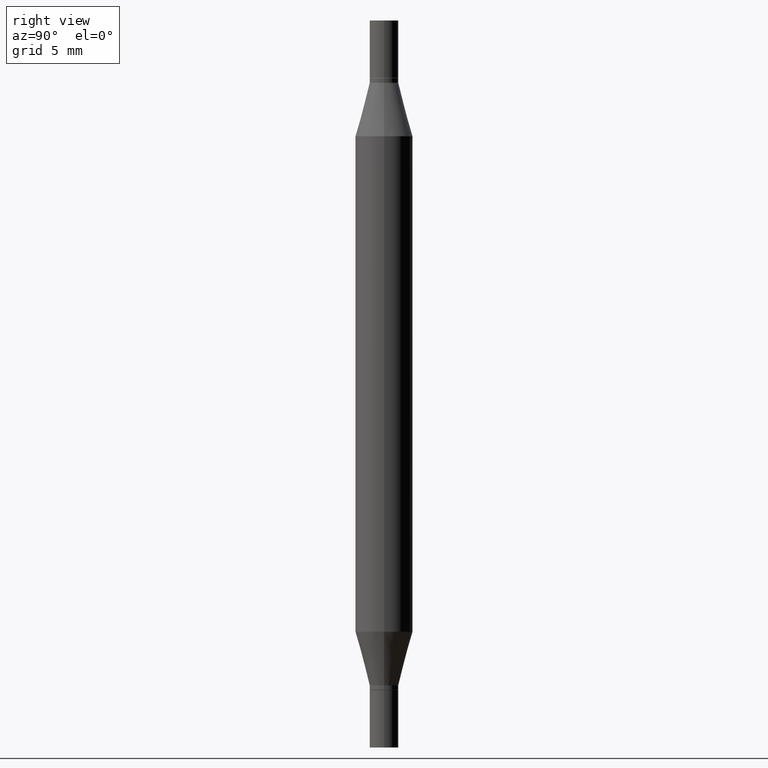
[diagram: clean part render]
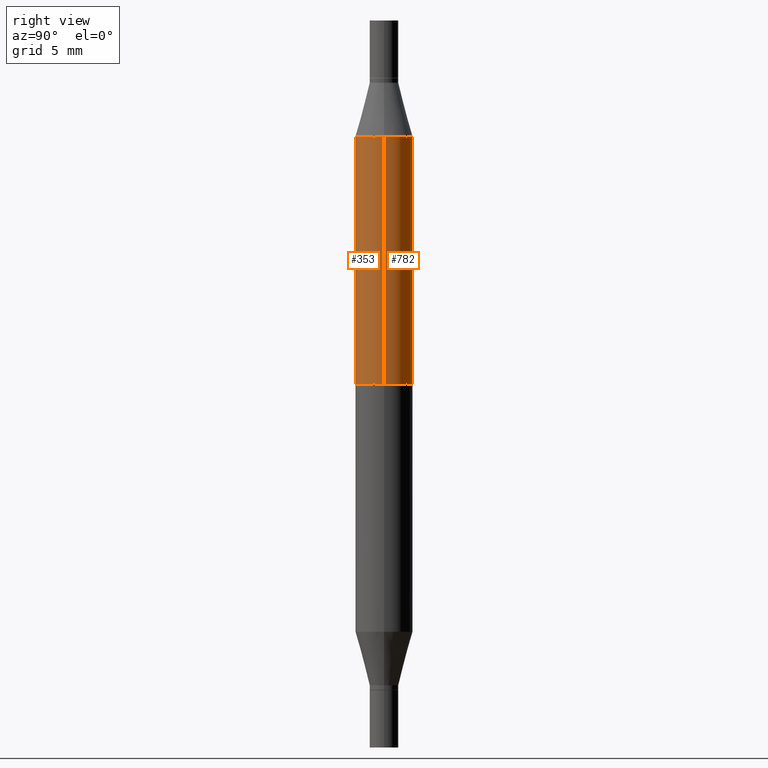
[diagram: same view with one multi-face feature highlighted, each face labeled with its STEP entity id]
A machine part, right view. The highlighted faces form ONE feature: a constant-radius fillet chain: 2 tangent blend faces with common blend radius 1.4999 mm. The faces share edges in the B-rep.
Their STEP definitions:
[1] entity #353 (Cylinder):
#13 = LINE ( 'NONE', #671, #833 ) ;
#19 = VERTEX_POINT ( 'NONE', #445 ) ;
#31 = CYLINDRICAL_SURFACE ( 'NONE', #296, 0.05905000000000000526 ) ;
#39 = DIRECTION ( 'NONE',  ( 1.000000000000000000, -6.982962677686265133E-15, 0.000000000000000000 ) ) ;
#82 = EDGE_CURVE ( 'NONE', #19, #412, #602, .T. ) ;
#106 = DIRECTION ( 'NONE',  ( 2.445468806185136597E-29, 3.491805094961124077E-15, 1.000000000000000000 ) ) ;
#149 = DIRECTION ( 'NONE',  ( 0.000000000000000000, 1.000000000000000000, -4.626330217890369336E-15 ) ) ;
#210 = CARTESIAN_POINT ( 'NONE',  ( 1.829332940466791194E-29, -2.611802615521614830E-15, -0.7480499999999999927 ) ) ;
#215 = DIRECTION ( 'NONE',  ( -0.000000000000000000, -3.491643216902134830E-15, -1.000000000000000000 ) ) ;
#254 = DIRECTION ( 'NONE',  ( -2.445468806185136877E-29, -3.491805094961123683E-15, -1.000000000000000000 ) ) ;
#258 = DIRECTION ( 'NONE',  ( -2.445468806185136597E-29, -3.491805094961124077E-15, -1.000000000000000000 ) ) ;
#296 = AXIS2_PLACEMENT_3D ( 'NONE', #332, #258, #854 ) ;
#332 = CARTESIAN_POINT ( 'NONE',  ( 0.000000000000000000, -5.223847416807283040E-15, -1.496099999999999985 ) ) ;
#352 = EDGE_CURVE ( 'NONE', #558, #412, #617, .T. ) ;
#353 = ADVANCED_FACE ( 'NONE', ( #701 ), #31, .T. ) ;
#386 = CARTESIAN_POINT ( 'NONE',  ( 0.05904999999999999832, -1.243484836231766624E-15, -0.2380954988232820146 ) ) ;
#401 = CARTESIAN_POINT ( 'NONE',  ( -0.05905000000000000526, -4.818735010038875060E-15, -1.496099999999999985 ) ) ;
#402 = CARTESIAN_POINT ( 'NONE',  ( 3.076410765668156654E-29, -8.311408901143919011E-16, -0.2380954988232820146 ) ) ;
#412 = VERTEX_POINT ( 'NONE', #936 ) ;
#445 = CARTESIAN_POINT ( 'NONE',  ( 0.05905000000000000526, -2.133815698935376609E-15, -0.7480499999999999927 ) ) ;
#511 = VERTEX_POINT ( 'NONE', #386 ) ;
#526 = EDGE_LOOP ( 'NONE', ( #548, #896, #862, #716 ) ) ;
#548 = ORIENTED_EDGE ( 'NONE', *, *, #847, .F. ) ;
#558 = VERTEX_POINT ( 'NONE', #897 ) ;
#561 = VECTOR ( 'NONE', #254, 39.37007874015748143 ) ;
#596 = DIRECTION ( 'NONE',  ( -2.445468806185136877E-29, -3.491805094961123683E-15, -1.000000000000000000 ) ) ;
#602 = CIRCLE ( 'NONE', #908, 0.05905000000000000526 ) ;
#617 = LINE ( 'NONE', #401, #561 ) ;
#624 = EDGE_CURVE ( 'NONE', #511, #19, #13, .T. ) ;
#671 = CARTESIAN_POINT ( 'NONE',  ( 0.05905000000000000526, -5.636191362924657961E-15, -1.496099999999999985 ) ) ;
#701 = FACE_OUTER_BOUND ( 'NONE', #526, .T. ) ;
#716 = ORIENTED_EDGE ( 'NONE', *, *, #624, .F. ) ;
#800 = AXIS2_PLACEMENT_3D ( 'NONE', #402, #106, #39 ) ;
#833 = VECTOR ( 'NONE', #596, 39.37007874015748143 ) ;
#847 = EDGE_CURVE ( 'NONE', #558, #511, #878, .T. ) ;
#854 = DIRECTION ( 'NONE',  ( 1.000000000000000000, -6.982962677686272233E-15, 0.000000000000000000 ) ) ;
#862 = ORIENTED_EDGE ( 'NONE', *, *, #82, .F. ) ;
#878 = CIRCLE ( 'NONE', #800, 0.05904999999999999832 ) ;
#896 = ORIENTED_EDGE ( 'NONE', *, *, #352, .T. ) ;
#897 = CARTESIAN_POINT ( 'NONE',  ( -0.05904999999999999832, -4.260284833459836245E-16, -0.2380954988232820146 ) ) ;
#908 = AXIS2_PLACEMENT_3D ( 'NONE', #210, #215, #149 ) ;
#936 = CARTESIAN_POINT ( 'NONE',  ( -0.05905000000000000526, -1.316359346049593906E-15, -0.7480499999999999927 ) ) ;
[2] entity #782 (Cylinder):
#3 = DIRECTION ( 'NONE',  ( -2.445468806185136597E-29, -3.491805094961124077E-15, -1.000000000000000000 ) ) ;
#8 = ORIENTED_EDGE ( 'NONE', *, *, #352, .F. ) ;
#13 = LINE ( 'NONE', #671, #833 ) ;
#19 = VERTEX_POINT ( 'NONE', #445 ) ;
#73 = ORIENTED_EDGE ( 'NONE', *, *, #624, .T. ) ;
#93 = CYLINDRICAL_SURFACE ( 'NONE', #135, 0.05905000000000000526 ) ;
#117 = EDGE_CURVE ( 'NONE', #412, #19, #193, .T. ) ;
#135 = AXIS2_PLACEMENT_3D ( 'NONE', #739, #3, #594 ) ;
#143 = DIRECTION ( 'NONE',  ( -0.000000000000000000, -3.491643216902134830E-15, -1.000000000000000000 ) ) ;
#160 = AXIS2_PLACEMENT_3D ( 'NONE', #316, #678, #914 ) ;
#193 = CIRCLE ( 'NONE', #798, 0.05905000000000000526 ) ;
#209 = EDGE_CURVE ( 'NONE', #511, #558, #704, .T. ) ;
#254 = DIRECTION ( 'NONE',  ( -2.445468806185136877E-29, -3.491805094961123683E-15, -1.000000000000000000 ) ) ;
#316 = CARTESIAN_POINT ( 'NONE',  ( 3.076410765668156654E-29, -8.311408901143919011E-16, -0.2380954988232820146 ) ) ;
#352 = EDGE_CURVE ( 'NONE', #558, #412, #617, .T. ) ;
#386 = CARTESIAN_POINT ( 'NONE',  ( 0.05904999999999999832, -1.243484836231766624E-15, -0.2380954988232820146 ) ) ;
#401 = CARTESIAN_POINT ( 'NONE',  ( -0.05905000000000000526, -4.818735010038875060E-15, -1.496099999999999985 ) ) ;
#412 = VERTEX_POINT ( 'NONE', #936 ) ;
#437 = DIRECTION ( 'NONE',  ( 0.000000000000000000, 1.000000000000000000, -4.626330217890369336E-15 ) ) ;
#445 = CARTESIAN_POINT ( 'NONE',  ( 0.05905000000000000526, -2.133815698935376609E-15, -0.7480499999999999927 ) ) ;
#511 = VERTEX_POINT ( 'NONE', #386 ) ;
#558 = VERTEX_POINT ( 'NONE', #897 ) ;
#561 = VECTOR ( 'NONE', #254, 39.37007874015748143 ) ;
#576 = ORIENTED_EDGE ( 'NONE', *, *, #117, .F. ) ;
#594 = DIRECTION ( 'NONE',  ( 1.000000000000000000, -6.982962677686272233E-15, 0.000000000000000000 ) ) ;
#596 = DIRECTION ( 'NONE',  ( -2.445468806185136877E-29, -3.491805094961123683E-15, -1.000000000000000000 ) ) ;
#617 = LINE ( 'NONE', #401, #561 ) ;
#624 = EDGE_CURVE ( 'NONE', #511, #19, #13, .T. ) ;
#671 = CARTESIAN_POINT ( 'NONE',  ( 0.05905000000000000526, -5.636191362924657961E-15, -1.496099999999999985 ) ) ;
#678 = DIRECTION ( 'NONE',  ( 2.445468806185136597E-29, 3.491805094961124077E-15, 1.000000000000000000 ) ) ;
#704 = CIRCLE ( 'NONE', #160, 0.05904999999999999832 ) ;
#739 = CARTESIAN_POINT ( 'NONE',  ( 0.000000000000000000, -5.223847416807283040E-15, -1.496099999999999985 ) ) ;
#752 = EDGE_LOOP ( 'NONE', ( #8, #960, #73, #576 ) ) ;
#757 = FACE_OUTER_BOUND ( 'NONE', #752, .T. ) ;
#782 = ADVANCED_FACE ( 'NONE', ( #757 ), #93, .T. ) ;
#798 = AXIS2_PLACEMENT_3D ( 'NONE', #810, #143, #437 ) ;
#810 = CARTESIAN_POINT ( 'NONE',  ( 1.829332940466791194E-29, -2.611802615521614830E-15, -0.7480499999999999927 ) ) ;
#833 = VECTOR ( 'NONE', #596, 39.37007874015748143 ) ;
#897 = CARTESIAN_POINT ( 'NONE',  ( -0.05904999999999999832, -4.260284833459836245E-16, -0.2380954988232820146 ) ) ;
#914 = DIRECTION ( 'NONE',  ( 1.000000000000000000, -6.982962677686265133E-15, 0.000000000000000000 ) ) ;
#936 = CARTESIAN_POINT ( 'NONE',  ( -0.05905000000000000526, -1.316359346049593906E-15, -0.7480499999999999927 ) ) ;
#960 = ORIENTED_EDGE ( 'NONE', *, *, #209, .F. ) ;